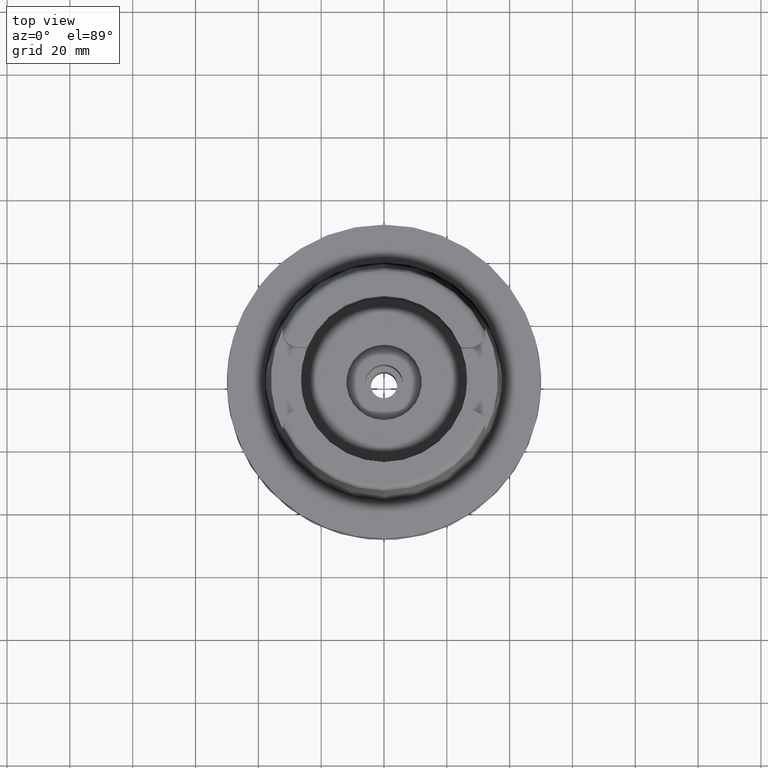
[diagram: clean part render]
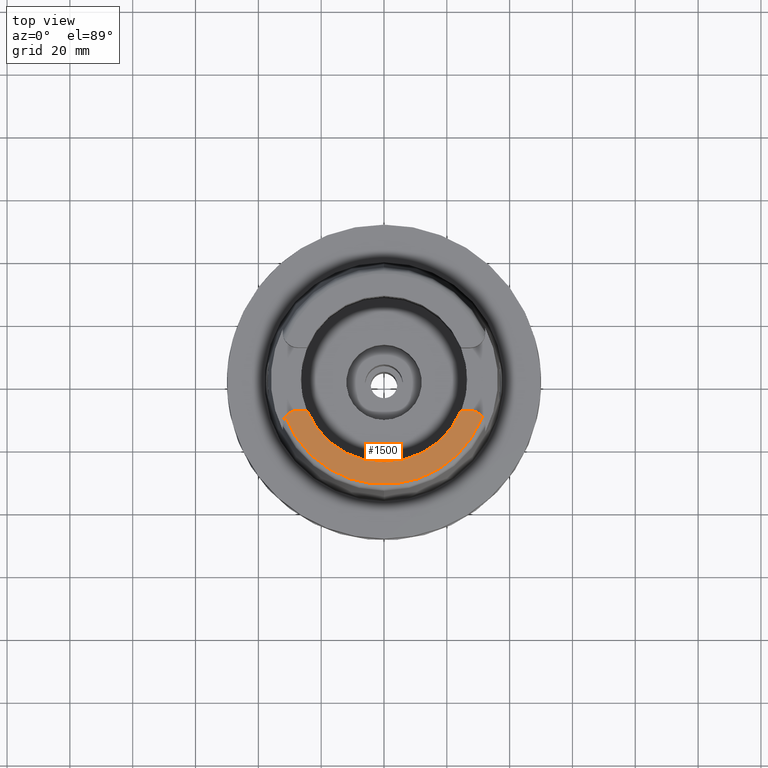
[diagram: same view with one face highlighted and labeled with its STEP entity id]
A machine part, top view. The second image highlights one B-rep face of the part: STEP entity #1500.
In plain terms, the highlighted planar face has unit normal (0, 0, 1).
Its self-contained STEP definition (entity closure, byte-faithful):
#165 = EDGE_CURVE ( 'NONE', #2617, #2253, #320, .T. ) ;
#195 = ORIENTED_EDGE ( 'NONE', *, *, #3463, .F. ) ;
#229 = CIRCLE ( 'NONE', #3290, 4.879999999999999005 ) ;
#237 = AXIS2_PLACEMENT_3D ( 'NONE', #1113, #3250, #2077 ) ;
#257 = DIRECTION ( 'NONE',  ( 0.0000000000000000000, -1.000000000000000000, 0.0000000000000000000 ) ) ;
#314 = CIRCLE ( 'NONE', #5541, 4.880000000000001670 ) ;
#320 = CIRCLE ( 'NONE', #1047, 26.50000000000000000 ) ;
#346 = DIRECTION ( 'NONE',  ( 0.0000000000000000000, 0.0000000000000000000, 1.000000000000000000 ) ) ;
#359 = PLANE ( 'NONE',  #237 ) ;
#441 = EDGE_CURVE ( 'NONE', #4502, #2253, #4678, .T. ) ;
#474 = EDGE_CURVE ( 'NONE', #4502, #731, #229, .T. ) ;
#486 = ORIENTED_EDGE ( 'NONE', *, *, #1986, .T. ) ;
#588 = DIRECTION ( 'NONE',  ( 0.0000000000000000000, 0.0000000000000000000, -1.000000000000000000 ) ) ;
#597 = DIRECTION ( 'NONE',  ( 0.0000000000000000000, 0.0000000000000000000, -1.000000000000000000 ) ) ;
#731 = VERTEX_POINT ( 'NONE', #2616 ) ;
#814 = ORIENTED_EDGE ( 'NONE', *, *, #441, .T. ) ;
#836 = EDGE_CURVE ( 'NONE', #2716, #2617, #2215, .T. ) ;
#970 = CARTESIAN_POINT ( 'NONE',  ( 27.36999999999999744, -10.00999999999999979, 50.00000000000000000 ) ) ;
#1047 = AXIS2_PLACEMENT_3D ( 'NONE', #3780, #346, #257 ) ;
#1113 = CARTESIAN_POINT ( 'NONE',  ( 0.0000000000000000000, 0.0000000000000000000, 50.00000000000000000 ) ) ;
#1209 = ORIENTED_EDGE ( 'NONE', *, *, #474, .F. ) ;
#1280 = CARTESIAN_POINT ( 'NONE',  ( 0.0000000000000000000, 0.0000000000000000000, 50.00000000000000000 ) ) ;
#1425 = CARTESIAN_POINT ( 'NONE',  ( 24.53670515777999839, -10.00999999999999979, 50.00000000000000000 ) ) ;
#1500 = ADVANCED_FACE ( 'NONE', ( #2047 ), #359, .T. ) ;
#1825 = DIRECTION ( 'NONE',  ( -1.000000000000000000, 1.442003377036999905E-13, 0.0000000000000000000 ) ) ;
#1928 = DIRECTION ( 'NONE',  ( 0.9332215253017949186, -0.3593015233941980191, 0.0000000000000000000 ) ) ;
#1986 = EDGE_CURVE ( 'NONE', #2716, #3472, #4384, .T. ) ;
#2039 = CIRCLE ( 'NONE', #3934, 33.59743838135999994 ) ;
#2047 = FACE_OUTER_BOUND ( 'NONE', #4433, .T. ) ;
#2077 = DIRECTION ( 'NONE',  ( 1.000000000000000000, 0.0000000000000000000, 0.0000000000000000000 ) ) ;
#2126 = AXIS2_PLACEMENT_3D ( 'NONE', #1280, #2555, #4284 ) ;
#2183 = ORIENTED_EDGE ( 'NONE', *, *, #836, .F. ) ;
#2215 = CIRCLE ( 'NONE', #2126, 26.50000000000000711 ) ;
#2243 = CARTESIAN_POINT ( 'NONE',  ( -24.53670515777999839, -10.00999999999999979, 50.00000000000000000 ) ) ;
#2253 = VERTEX_POINT ( 'NONE', #1425 ) ;
#2555 = DIRECTION ( 'NONE',  ( 0.0000000000000000000, 0.0000000000000000000, 1.000000000000000000 ) ) ;
#2616 = CARTESIAN_POINT ( 'NONE',  ( 31.35385269249000473, -12.07161079256999869, 50.00000000000000000 ) ) ;
#2617 = VERTEX_POINT ( 'NONE', #4364 ) ;
#2716 = VERTEX_POINT ( 'NONE', #3307 ) ;
#3012 = CARTESIAN_POINT ( 'NONE',  ( 27.36999999999999744, -10.00999999999999979, 50.00000000000000000 ) ) ;
#3250 = DIRECTION ( 'NONE',  ( 0.0000000000000000000, 0.0000000000000000000, 1.000000000000000000 ) ) ;
#3263 = VERTEX_POINT ( 'NONE', #3399 ) ;
#3290 = AXIS2_PLACEMENT_3D ( 'NONE', #5252, #597, #4004 ) ;
#3307 = CARTESIAN_POINT ( 'NONE',  ( -24.53670515777999839, -10.00999999999999979, 50.00000000000000000 ) ) ;
#3312 = VECTOR ( 'NONE', #1825, 1000.000000000000000 ) ;
#3399 = CARTESIAN_POINT ( 'NONE',  ( -31.35385269249000473, -12.07161079256999869, 50.00000000000000000 ) ) ;
#3463 = EDGE_CURVE ( 'NONE', #3263, #3472, #314, .T. ) ;
#3472 = VERTEX_POINT ( 'NONE', #4444 ) ;
#3610 = DIRECTION ( 'NONE',  ( 0.0000000000000000000, 0.0000000000000000000, -1.000000000000000000 ) ) ;
#3627 = ORIENTED_EDGE ( 'NONE', *, *, #165, .F. ) ;
#3780 = CARTESIAN_POINT ( 'NONE',  ( 0.0000000000000000000, 0.0000000000000000000, 50.00000000000000000 ) ) ;
#3934 = AXIS2_PLACEMENT_3D ( 'NONE', #4056, #588, #1928 ) ;
#4004 = DIRECTION ( 'NONE',  ( 0.0000000000000000000, 1.000000000000000000, 0.0000000000000000000 ) ) ;
#4056 = CARTESIAN_POINT ( 'NONE',  ( 0.0000000000000000000, 0.0000000000000000000, 50.00000000000000000 ) ) ;
#4260 = DIRECTION ( 'NONE',  ( -1.000000000000000000, -1.454542536837999925E-13, 0.0000000000000000000 ) ) ;
#4284 = DIRECTION ( 'NONE',  ( -0.9259134021805098813, -0.3777358490566039562, 0.0000000000000000000 ) ) ;
#4364 = CARTESIAN_POINT ( 'NONE',  ( 0.0000000000000000000, -26.50000000000000000, 50.00000000000000000 ) ) ;
#4384 = LINE ( 'NONE', #2243, #3312 ) ;
#4433 = EDGE_LOOP ( 'NONE', ( #4516, #1209, #814, #3627, #2183, #486, #195 ) ) ;
#4444 = CARTESIAN_POINT ( 'NONE',  ( -27.36999999999999744, -10.00999999999999979, 50.00000000000000000 ) ) ;
#4460 = VECTOR ( 'NONE', #4260, 1000.000000000000000 ) ;
#4473 = CARTESIAN_POINT ( 'NONE',  ( -27.36999999999999744, -14.89000000000000057, 50.00000000000000000 ) ) ;
#4502 = VERTEX_POINT ( 'NONE', #970 ) ;
#4516 = ORIENTED_EDGE ( 'NONE', *, *, #5464, .F. ) ;
#4678 = LINE ( 'NONE', #3012, #4460 ) ;
#4870 = DIRECTION ( 'NONE',  ( -0.8163632566568778115, 0.5775387720149849358, 0.0000000000000000000 ) ) ;
#5252 = CARTESIAN_POINT ( 'NONE',  ( 27.36999999999999744, -14.89000000000000057, 50.00000000000000000 ) ) ;
#5464 = EDGE_CURVE ( 'NONE', #731, #3263, #2039, .T. ) ;
#5541 = AXIS2_PLACEMENT_3D ( 'NONE', #4473, #3610, #4870 ) ;